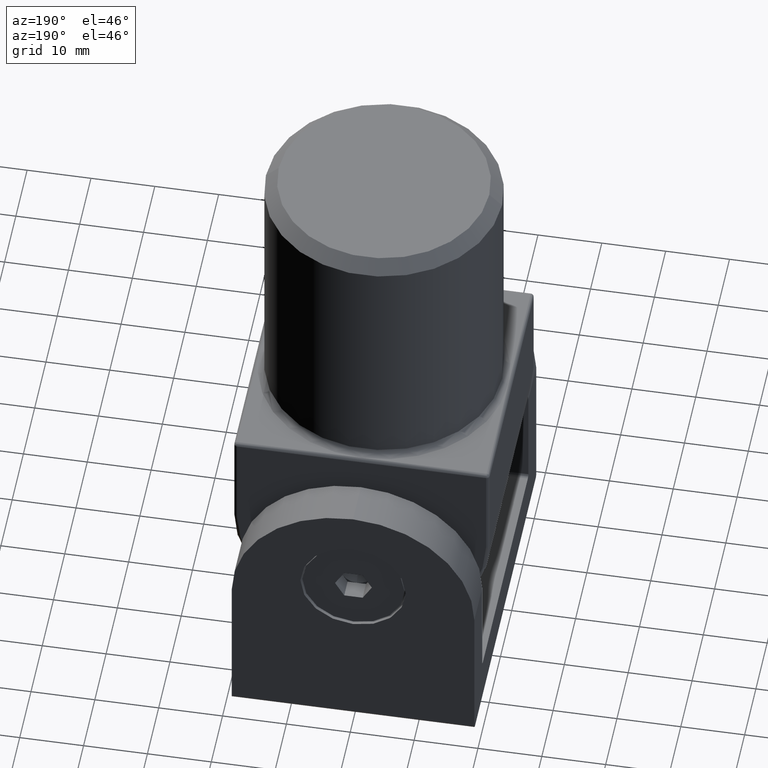
[diagram: clean part render]
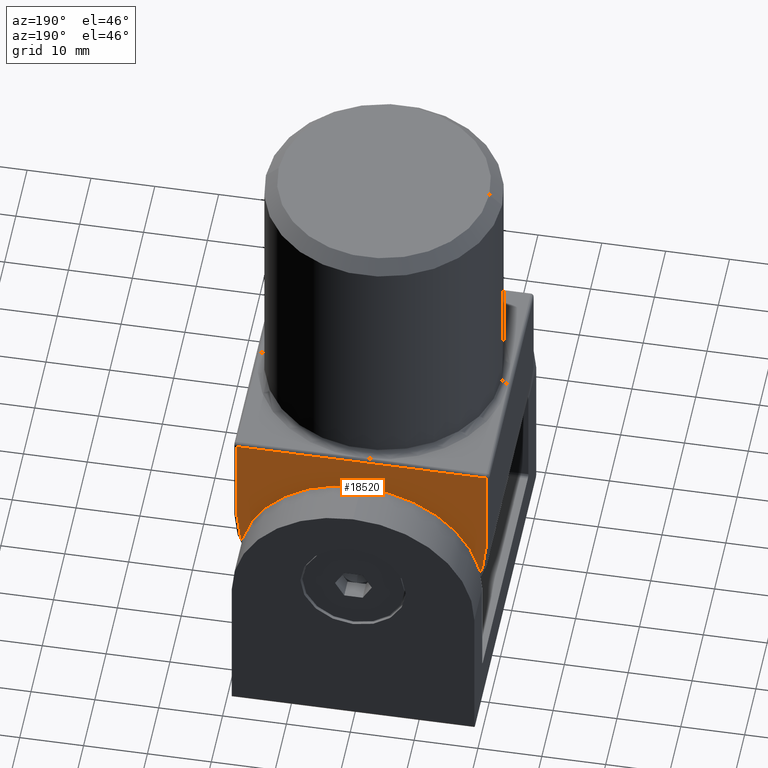
[diagram: same view with one face highlighted and labeled with its STEP entity id]
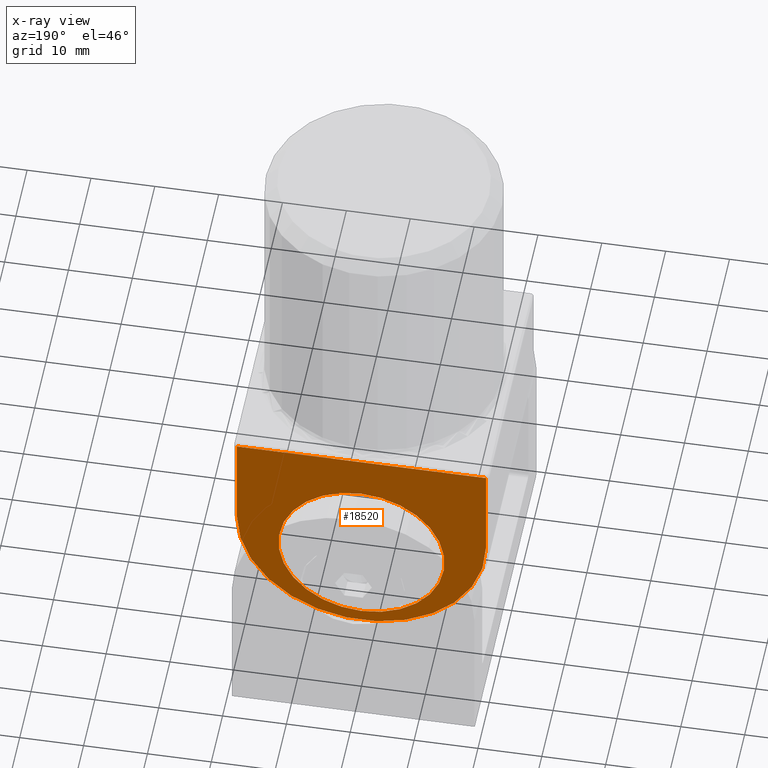
[diagram: x-ray of the same camera — body ghosted, the highlighted face saturated]
A machine part, auxiliary view. The second image highlights one B-rep face of the part: STEP entity #18520.
The next image is the same camera in x-ray: the body ghosted, the highlighted face saturated — about 0% of this face is hidden behind the body in this view.
In plain terms, the highlighted planar face has unit normal (0, 1, 0).
Its self-contained STEP definition (entity closure, byte-faithful):
#125 = EDGE_CURVE ( 'NONE', #12203, #7602, #18162, .T. ) ;
#362 = CARTESIAN_POINT ( 'NONE',  ( 0.000000000000000000, 20.00000000000000000, -15.99999999999999289 ) ) ;
#600 = LINE ( 'NONE', #11041, #3068 ) ;
#1185 = LINE ( 'NONE', #3965, #6584 ) ;
#1499 = EDGE_CURVE ( 'NONE', #6301, #9296, #19824, .T. ) ;
#1642 = EDGE_CURVE ( 'NONE', #9296, #6301, #7273, .T. ) ;
#2270 = LINE ( 'NONE', #14609, #14545 ) ;
#2338 = EDGE_CURVE ( 'NONE', #7602, #18361, #600, .T. ) ;
#2436 = ORIENTED_EDGE ( 'NONE', *, *, #2338, .T. ) ;
#2964 = CARTESIAN_POINT ( 'NONE',  ( 19.50000000000000355, 20.00000000000000000, -15.99999999999998934 ) ) ;
#3068 = VECTOR ( 'NONE', #17220, 1000.000000000000000 ) ;
#3145 = AXIS2_PLACEMENT_3D ( 'NONE', #362, #11308, #17517 ) ;
#3965 = CARTESIAN_POINT ( 'NONE',  ( 19.50000000000000355, 20.00000000000000000, -15.99999999999998934 ) ) ;
#6301 = VERTEX_POINT ( 'NONE', #19698 ) ;
#6391 = DIRECTION ( 'NONE',  ( 0.000000000000000000, 0.000000000000000000, 1.000000000000000000 ) ) ;
#6584 = VECTOR ( 'NONE', #14968, 1000.000000000000000 ) ;
#7273 = CIRCLE ( 'NONE', #12233, 13.00000000000000178 ) ;
#7602 = VERTEX_POINT ( 'NONE', #17823 ) ;
#7633 = PLANE ( 'NONE',  #8995 ) ;
#8580 = FACE_BOUND ( 'NONE', #13291, .T. ) ;
#8995 = AXIS2_PLACEMENT_3D ( 'NONE', #13826, #10732, #17024 ) ;
#9245 = CARTESIAN_POINT ( 'NONE',  ( 0.000000000000000000, 20.00000000000000000, -20.50000000000000000 ) ) ;
#9296 = VERTEX_POINT ( 'NONE', #9297 ) ;
#9297 = CARTESIAN_POINT ( 'NONE',  ( 0.000000000000000000, 20.00000000000000000, -7.500000000000000000 ) ) ;
#9473 = ORIENTED_EDGE ( 'NONE', *, *, #125, .T. ) ;
#9568 = FACE_OUTER_BOUND ( 'NONE', #18214, .T. ) ;
#10443 = ORIENTED_EDGE ( 'NONE', *, *, #1499, .F. ) ;
#10732 = DIRECTION ( 'NONE',  ( 0.000000000000000000, 1.000000000000000000, 0.000000000000000000 ) ) ;
#11041 = CARTESIAN_POINT ( 'NONE',  ( -19.50000000000000000, 20.00000000000000000, 0.000000000000000000 ) ) ;
#11308 = DIRECTION ( 'NONE',  ( 0.000000000000000000, 1.000000000000000000, 0.000000000000000000 ) ) ;
#11315 = VERTEX_POINT ( 'NONE', #16333 ) ;
#11449 = DIRECTION ( 'NONE',  ( 1.000000000000000000, -0.000000000000000000, 0.000000000000000000 ) ) ;
#12203 = VERTEX_POINT ( 'NONE', #2964 ) ;
#12233 = AXIS2_PLACEMENT_3D ( 'NONE', #17239, #18990, #6391 ) ;
#12772 = ORIENTED_EDGE ( 'NONE', *, *, #1642, .F. ) ;
#13291 = EDGE_LOOP ( 'NONE', ( #12772, #10443 ) ) ;
#13826 = CARTESIAN_POINT ( 'NONE',  ( 0.000000000000000000, 20.00000000000000000, -15.99999999999999289 ) ) ;
#14545 = VECTOR ( 'NONE', #11449, 1000.000000000000000 ) ;
#14609 = CARTESIAN_POINT ( 'NONE',  ( 20.00000000000000000, 20.00000000000000000, -0.5000000000000004441 ) ) ;
#14810 = CARTESIAN_POINT ( 'NONE',  ( -19.50000000000000000, 20.00000000000000000, -0.5000000000000004441 ) ) ;
#14968 = DIRECTION ( 'NONE',  ( 2.168404344971010347E-16, 0.000000000000000000, -1.000000000000000000 ) ) ;
#15200 = ORIENTED_EDGE ( 'NONE', *, *, #16133, .T. ) ;
#15648 = DIRECTION ( 'NONE',  ( 0.000000000000000000, 1.000000000000000000, 0.000000000000000000 ) ) ;
#16133 = EDGE_CURVE ( 'NONE', #18361, #11315, #2270, .T. ) ;
#16333 = CARTESIAN_POINT ( 'NONE',  ( 19.50000000000000000, 20.00000000000000000, -0.5000000000000004441 ) ) ;
#17024 = DIRECTION ( 'NONE',  ( 0.000000000000000000, -0.000000000000000000, 1.000000000000000000 ) ) ;
#17220 = DIRECTION ( 'NONE',  ( 2.168404344971010347E-16, -0.000000000000000000, 1.000000000000000000 ) ) ;
#17239 = CARTESIAN_POINT ( 'NONE',  ( 0.000000000000000000, 20.00000000000000000, -20.50000000000000000 ) ) ;
#17517 = DIRECTION ( 'NONE',  ( 0.000000000000000000, 0.000000000000000000, 1.000000000000000000 ) ) ;
#17823 = CARTESIAN_POINT ( 'NONE',  ( -19.50000000000000355, 20.00000000000000000, -15.99999999999999645 ) ) ;
#18162 = CIRCLE ( 'NONE', #3145, 19.50000000000000355 ) ;
#18214 = EDGE_LOOP ( 'NONE', ( #9473, #2436, #15200, #19451 ) ) ;
#18361 = VERTEX_POINT ( 'NONE', #14810 ) ;
#18472 = DIRECTION ( 'NONE',  ( 0.000000000000000000, 0.000000000000000000, 1.000000000000000000 ) ) ;
#18520 = ADVANCED_FACE ( 'NONE', ( #8580, #9568 ), #7633, .T. ) ;
#18990 = DIRECTION ( 'NONE',  ( 0.000000000000000000, 1.000000000000000000, 0.000000000000000000 ) ) ;
#19451 = ORIENTED_EDGE ( 'NONE', *, *, #19630, .T. ) ;
#19613 = AXIS2_PLACEMENT_3D ( 'NONE', #9245, #15648, #18472 ) ;
#19630 = EDGE_CURVE ( 'NONE', #11315, #12203, #1185, .T. ) ;
#19698 = CARTESIAN_POINT ( 'NONE',  ( 1.592040838891559293E-15, 20.00000000000000000, -33.50000000000000000 ) ) ;
#19824 = CIRCLE ( 'NONE', #19613, 13.00000000000000178 ) ;